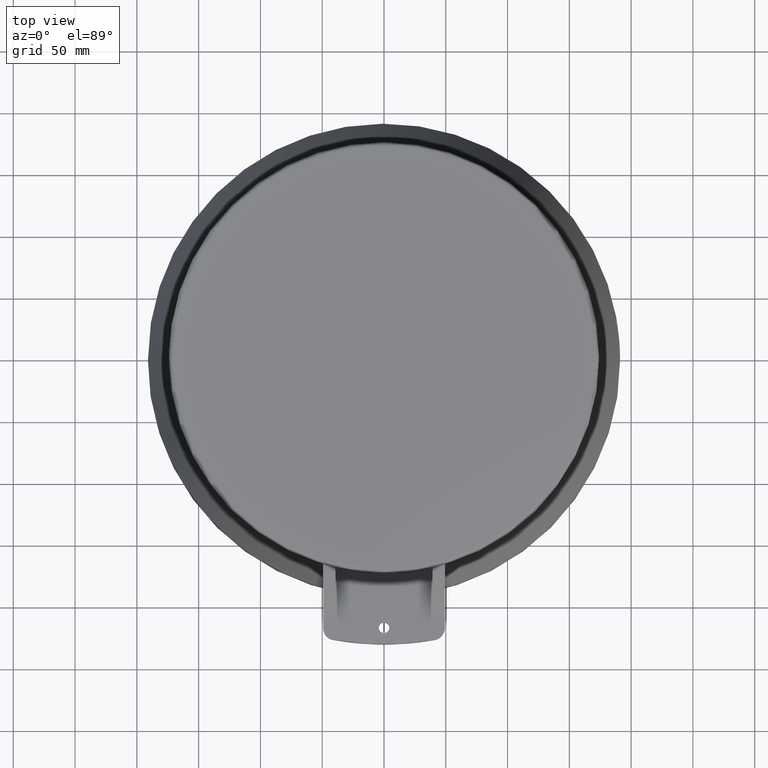
[diagram: clean part render]
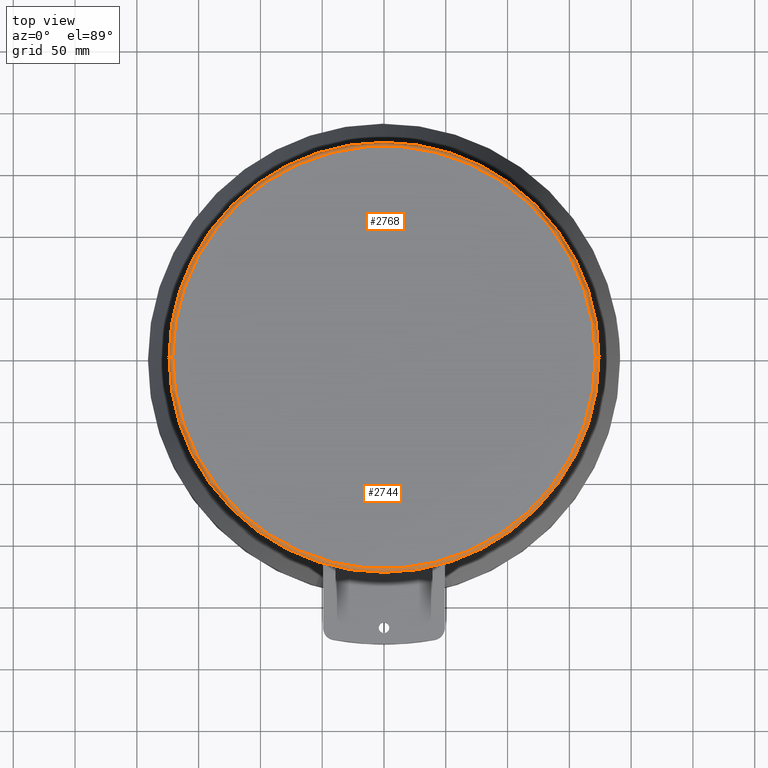
[diagram: same view with one multi-face feature highlighted, each face labeled with its STEP entity id]
A machine part, top view. The highlighted faces form ONE feature: a constant-radius fillet chain: 2 tangent blend faces with common blend radius 3 mm. The faces share edges in the B-rep.
Their STEP definitions:
[1] entity #2744 (Torus):
#1016=CARTESIAN_POINT('',(0.E0,0.E0,-3.E0));
#1017=DIRECTION('',(0.E0,0.E0,1.E0));
#1018=DIRECTION('',(-1.E0,0.E0,0.E0));
#1019=AXIS2_PLACEMENT_3D('',#1016,#1017,#1018);
#1238=CARTESIAN_POINT('',(-1.71E2,1.769140389740E-13,-3.E0));
#1239=DIRECTION('',(0.E0,-1.E0,0.E0));
#1240=DIRECTION('',(0.E0,0.E0,1.E0));
#1241=AXIS2_PLACEMENT_3D('',#1238,#1239,#1240);
#1248=CARTESIAN_POINT('',(0.E0,0.E0,2.842170943040E-14));
#1249=DIRECTION('',(0.E0,0.E0,1.E0));
#1250=DIRECTION('',(-1.E0,0.E0,0.E0));
#1251=AXIS2_PLACEMENT_3D('',#1248,#1249,#1250);
#1253=CARTESIAN_POINT('',(1.71E2,-2.615963001773E-13,-3.E0));
#1254=DIRECTION('',(0.E0,1.E0,0.E0));
#1255=DIRECTION('',(0.E0,0.E0,1.E0));
#1256=AXIS2_PLACEMENT_3D('',#1253,#1254,#1255);
#1679=CARTESIAN_POINT('',(1.71E2,-5.499779461894E-14,5.983389982853E-14));
#1680=CARTESIAN_POINT('',(-1.71E2,7.593925488436E-14,0.E0));
#1681=VERTEX_POINT('',#1679);
#1682=VERTEX_POINT('',#1680);
#1683=CARTESIAN_POINT('',(1.74E2,2.130885430516E-14,-3.E0));
#1684=CARTESIAN_POINT('',(-1.74E2,0.E0,-3.E0));
#1685=VERTEX_POINT('',#1683);
#1686=VERTEX_POINT('',#1684);
#2730=CARTESIAN_POINT('',(0.E0,0.E0,-3.E0));
#2731=DIRECTION('',(0.E0,0.E0,1.E0));
#2732=DIRECTION('',(-9.999996095158E-1,8.837240229043E-4,0.E0));
#2733=AXIS2_PLACEMENT_3D('',#2730,#2731,#2732);
#2734=TOROIDAL_SURFACE('',#2733,1.71E2,3.E0);
#2736=ORIENTED_EDGE('',*,*,#2735,.T.);
#2738=ORIENTED_EDGE('',*,*,#2737,.T.);
#2739=ORIENTED_EDGE('',*,*,#2452,.F.);
#2741=ORIENTED_EDGE('',*,*,#2740,.F.);
#2742=EDGE_LOOP('',(#2736,#2738,#2739,#2741));
#2743=FACE_OUTER_BOUND('',#2742,.F.);
#1020=CIRCLE('',#1019,1.74E2);
#1242=CIRCLE('',#1241,3.E0);
#1252=CIRCLE('',#1251,1.71E2);
#1257=CIRCLE('',#1256,3.E0);
#2452=EDGE_CURVE('',#1686,#1685,#1020,.T.);
#2735=EDGE_CURVE('',#1682,#1681,#1252,.T.);
#2737=EDGE_CURVE('',#1681,#1685,#1257,.T.);
#2740=EDGE_CURVE('',#1682,#1686,#1242,.T.);
#2744=ADVANCED_FACE('',(#2743),#2734,.T.);
[2] entity #2768 (Torus):
#1238=CARTESIAN_POINT('',(-1.71E2,1.769140389740E-13,-3.E0));
#1239=DIRECTION('',(0.E0,-1.E0,0.E0));
#1240=DIRECTION('',(0.E0,0.E0,1.E0));
#1241=AXIS2_PLACEMENT_3D('',#1238,#1239,#1240);
#1243=CARTESIAN_POINT('',(0.E0,0.E0,2.842170943040E-14));
#1244=DIRECTION('',(0.E0,0.E0,1.E0));
#1245=DIRECTION('',(1.E0,0.E0,0.E0));
#1246=AXIS2_PLACEMENT_3D('',#1243,#1244,#1245);
#1253=CARTESIAN_POINT('',(1.71E2,-2.615963001773E-13,-3.E0));
#1254=DIRECTION('',(0.E0,1.E0,0.E0));
#1255=DIRECTION('',(0.E0,0.E0,1.E0));
#1256=AXIS2_PLACEMENT_3D('',#1253,#1254,#1255);
#1258=CARTESIAN_POINT('',(0.E0,0.E0,-3.E0));
#1259=DIRECTION('',(0.E0,0.E0,1.E0));
#1260=DIRECTION('',(1.E0,0.E0,0.E0));
#1261=AXIS2_PLACEMENT_3D('',#1258,#1259,#1260);
#1679=CARTESIAN_POINT('',(1.71E2,-5.499779461894E-14,5.983389982853E-14));
#1680=CARTESIAN_POINT('',(-1.71E2,7.593925488436E-14,0.E0));
#1681=VERTEX_POINT('',#1679);
#1682=VERTEX_POINT('',#1680);
#1683=CARTESIAN_POINT('',(1.74E2,2.130885430516E-14,-3.E0));
#1684=CARTESIAN_POINT('',(-1.74E2,0.E0,-3.E0));
#1685=VERTEX_POINT('',#1683);
#1686=VERTEX_POINT('',#1684);
#2756=CARTESIAN_POINT('',(0.E0,0.E0,-3.E0));
#2757=DIRECTION('',(0.E0,0.E0,1.E0));
#2758=DIRECTION('',(9.999996095158E-1,-8.837240229045E-4,0.E0));
#2759=AXIS2_PLACEMENT_3D('',#2756,#2757,#2758);
#2760=TOROIDAL_SURFACE('',#2759,1.71E2,3.E0);
#2761=ORIENTED_EDGE('',*,*,#2750,.T.);
#2762=ORIENTED_EDGE('',*,*,#2740,.T.);
#2764=ORIENTED_EDGE('',*,*,#2763,.F.);
#2765=ORIENTED_EDGE('',*,*,#2737,.F.);
#2766=EDGE_LOOP('',(#2761,#2762,#2764,#2765));
#2767=FACE_OUTER_BOUND('',#2766,.F.);
#1242=CIRCLE('',#1241,3.E0);
#1247=CIRCLE('',#1246,1.71E2);
#1257=CIRCLE('',#1256,3.E0);
#1262=CIRCLE('',#1261,1.74E2);
#2737=EDGE_CURVE('',#1681,#1685,#1257,.T.);
#2740=EDGE_CURVE('',#1682,#1686,#1242,.T.);
#2750=EDGE_CURVE('',#1681,#1682,#1247,.T.);
#2763=EDGE_CURVE('',#1685,#1686,#1262,.T.);
#2768=ADVANCED_FACE('',(#2767),#2760,.T.);